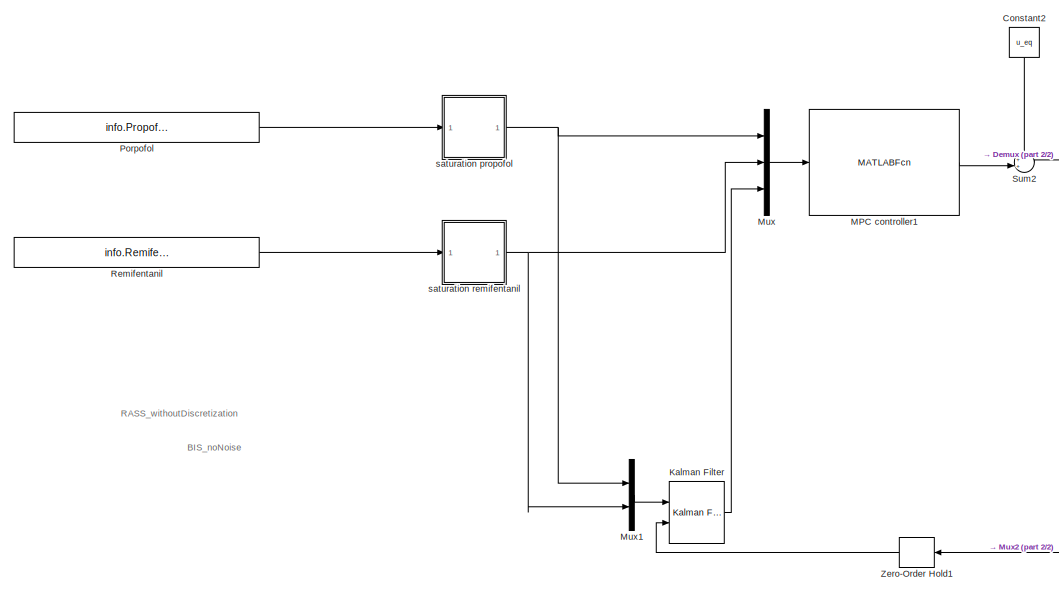
[diagram: root canvas - part 1/2, left side, full height]
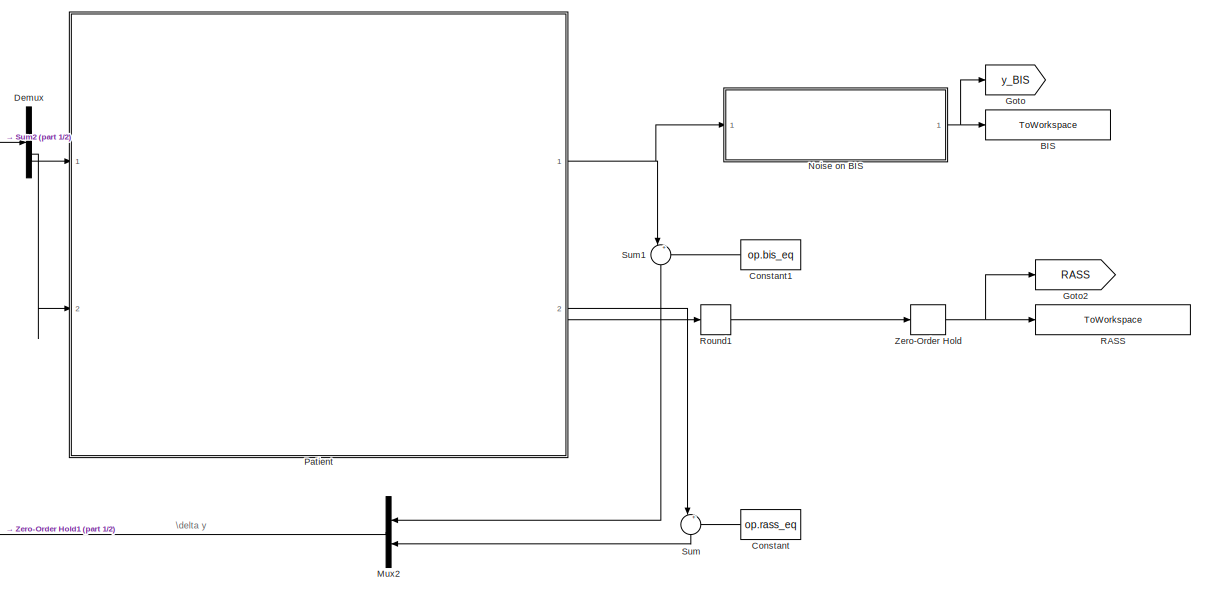
[diagram: root canvas - part 2/2, right side, full height]
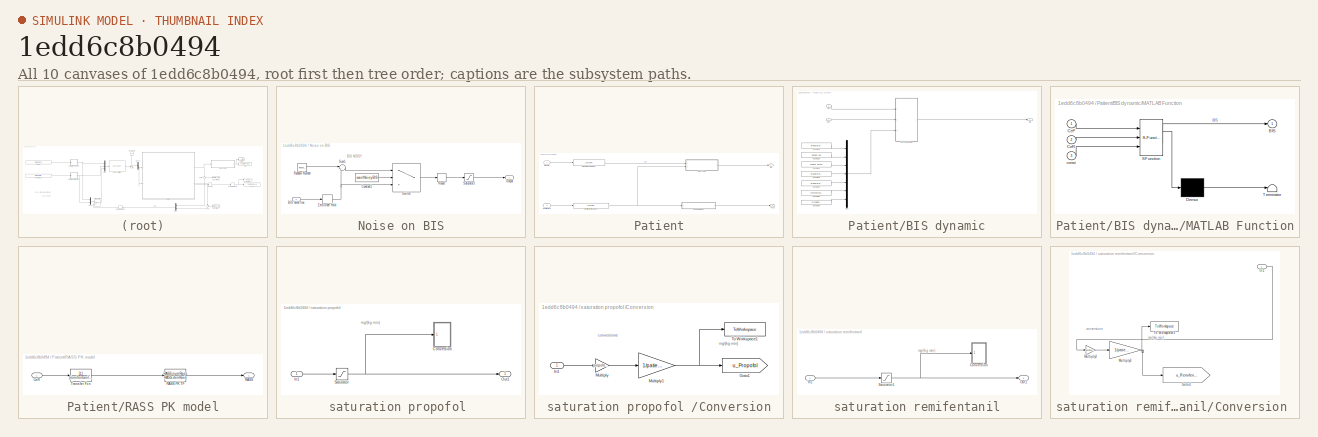
[diagram: thumbnail index - all 10 canvases of the model, root first then tree order]
MODEL slx_1edd6c8b0494
KIND model
CONFIG AbsTol = auto
CONFIG EnableMultiTasking = off
CONFIG FixedStep = auto
CONFIG MaxStep = auto
CONFIG MinStep = auto
CONFIG RelTol = 1e-3
CONFIG SampleTimeConstraint = Unconstrained
CONFIG SolverName = VariableStepAuto
CONFIG StartTime = 0.0
CONFIG StopTime = 10.0
BLOCK [ToWorkspace] BIS
  FixptAsFi = on
  MaxDataPoints = inf
  Ports = [1]
  SampleTime = info.Ts
  Save2DSignal = 2-D array (concatenate along first dimension)
  SaveFormat = Structure With Time
  VariableName = BIS_output
BLOCK [Constant] Constant
  Value = op.rass_eq
BLOCK [Constant] Constant1
  Value = op.bis_eq
BLOCK [Constant] Constant2
  NameLocation = left
  Value = u_eq
BLOCK [Demux] Demux
  Outputs = 2
  Ports = [1, 2]
BLOCK [Goto] Goto
  GotoTag = y_BIS
  TagVisibility = global
BLOCK [Goto] Goto2
  GotoTag = RASS
  TagVisibility = global
BLOCK [Reference] Kalman Filter  REF=ctrlSharedLib/Kalman Filter
  Ports = [2, 1]
  SourceBlock = ctrlSharedLib/Kalman Filter
  SourceProductBaseCode = CT,ID
  SourceType = ctrlKalmanFilter
BLOCK [MATLABFcn] MPC controller1
  MATLABFcn = myMPC_dist(u,contDiscMat,PH)
  OutputDimensions = 2
  Ports = [1, 1]
BLOCK [Mux] Mux
  DisplayOption = bar
  Inputs = 3
  Ports = [3, 1]
BLOCK [Mux] Mux1
  DisplayOption = bar
  Inputs = 2
  Ports = [2, 1]
BLOCK [Mux] Mux2
  DisplayOption = bar
  Inputs = 2
  Ports = [2, 1]
BLOCK [SubSystem] Noise on BIS
  Ports = [1, 1]
  RequestExecContextInheritance = off
BLOCK [Inport] Noise on BIS/BIS noise free
BLOCK [Constant] Noise on BIS/Constant1
  Value = wantNoisyBIS
BLOCK [Outport] Noise on BIS/Output
BLOCK [RandomNumber] Noise on BIS/Random Number
  SampleTime = info.Ts
  Variance = 6.27
BLOCK [Rounding] Noise on BIS/Round
  Operator = round
BLOCK [Saturate] Noise on BIS/Saturator3
  LowerLimit = 0
  UpperLimit = 100
BLOCK [Sum] Noise on BIS/Sum1
  Inputs = |++
  Ports = [2, 1]
BLOCK [Switch] Noise on BIS/Switch
  Criteria = u2 > Threshold
  InputSameDT = off
  SaturateOnIntegerOverflow = off
  Threshold = 0.5
BLOCK [ZeroOrderHold] Noise on BIS/Zero-Order Hold
  SampleTime = info.Ts
BLOCK [SubSystem] Patient
  Ports = [2, 2]
  RequestExecContextInheritance = off
BLOCK [Outport] Patient/BIS
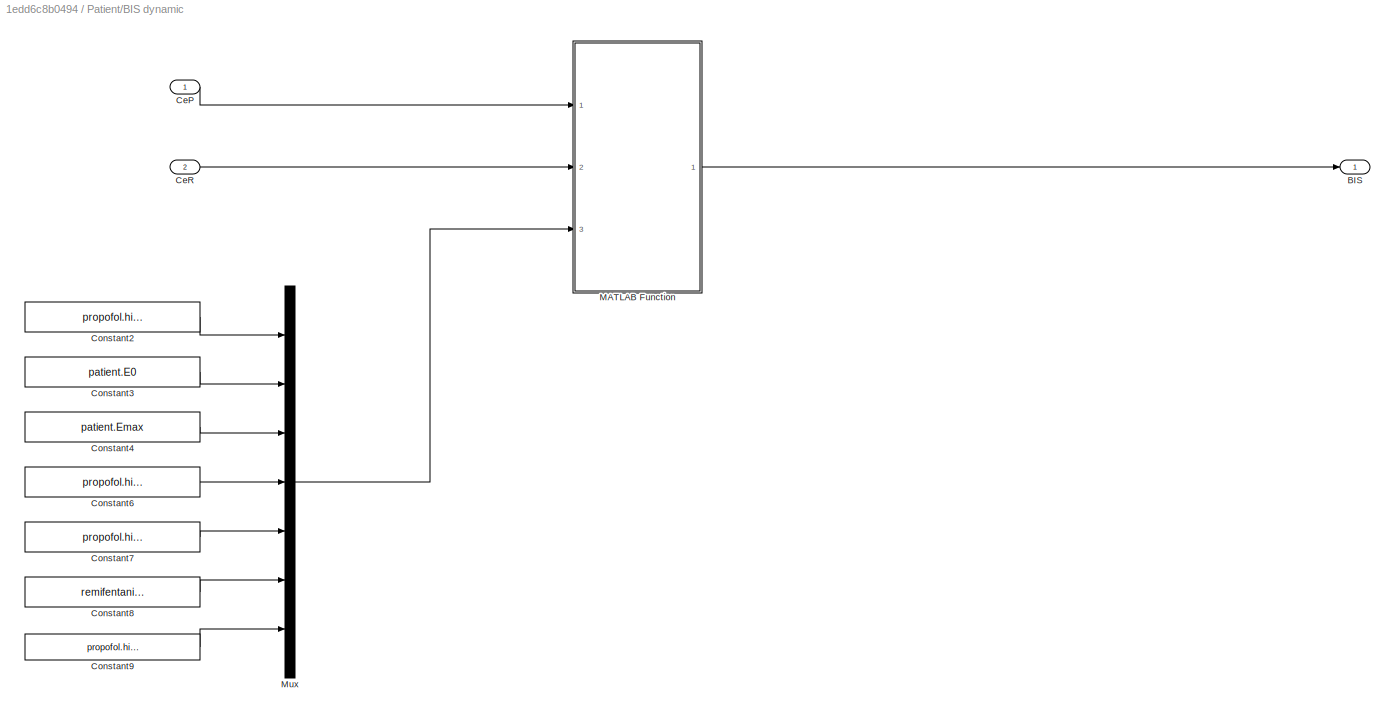
BLOCK [SubSystem] Patient/BIS dynamic
  Ports = [2, 1]
  RequestExecContextInheritance = off
BLOCK [Outport] Patient/BIS dynamic/BIS
BLOCK [Inport] Patient/BIS dynamic/CeP
BLOCK [Inport] Patient/BIS dynamic/CeR
  Port = 2
BLOCK [Constant] Patient/BIS dynamic/Constant2
  Value = propofol.hill_Propofol.beta
BLOCK [Constant] Patient/BIS dynamic/Constant3
  Value = patient.E0
BLOCK [Constant] Patient/BIS dynamic/Constant4
  Value = patient.Emax
BLOCK [Constant] Patient/BIS dynamic/Constant6
  Value = propofol.hill_Propofol.gamma
BLOCK [Constant] Patient/BIS dynamic/Constant7
  Value = propofol.hill_Propofol.C50P
BLOCK [Constant] Patient/BIS dynamic/Constant8
  Value = remifentanil.hill_Remifentanil.C50R
BLOCK [Constant] Patient/BIS dynamic/Constant9
  Value = propofol.hill_Propofol.sigma
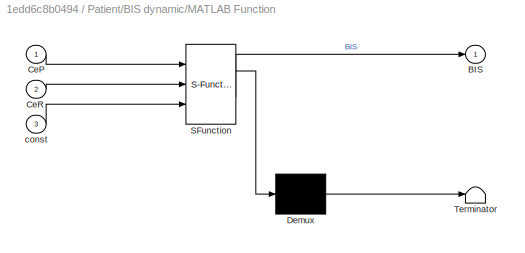
BLOCK [SubSystem] Patient/BIS dynamic/MATLAB Function
  ErrorFcn = Stateflow.Translate.translate
  PermitHierarchicalResolution = ExplicitOnly
  Ports = [3, 1]
  RequestExecContextInheritance = off
  SFBlockType = MATLAB Function
  TreatAsAtomicUnit = on
BLOCK [Demux] Patient/BIS dynamic/MATLAB Function/ Demux 
  Outputs = 1
  Ports = [1, 1]
BLOCK [S-Function] Patient/BIS dynamic/MATLAB Function/ SFunction 
  EnableBusSupport = on
  FunctionName = sf_sfun
  PortCounts = [3 2]
  Ports = [3, 2]
  SFcnIsStateOwnerBlock = off
  SFunctionDeploymentMode = off
  Tag = Stateflow S-Function 2
BLOCK [Terminator] Patient/BIS dynamic/MATLAB Function/ Terminator 
BLOCK [Outport] Patient/BIS dynamic/MATLAB Function/BIS
BLOCK [Inport] Patient/BIS dynamic/MATLAB Function/CeP
BLOCK [Inport] Patient/BIS dynamic/MATLAB Function/CeR
  Port = 2
BLOCK [Inport] Patient/BIS dynamic/MATLAB Function/const
  Port = 3
BLOCK [Mux] Patient/BIS dynamic/Mux
  DisplayOption = bar
  Inputs = 7
  Ports = [7, 1]
BLOCK [Inport] Patient/Propofol
BLOCK [Reference] Patient/Propofol SS PK model  REF=cstblocks/LTI System
  Ports = [1, 1]
  SourceBlock = cstblocks/LTI System
  SourceProductBaseCode = CT
  SourceType = LTI Block
BLOCK [Outport] Patient/RASS
  Port = 2
BLOCK [SubSystem] Patient/RASS PK model
  Ports = [1, 1]
  RequestExecContextInheritance = off
BLOCK [Inport] Patient/RASS PK model/CeR
BLOCK [Outport] Patient/RASS PK model/RASS
BLOCK [TransferFcn] Patient/RASS PK model/RASS PK TF
  Denominator = RASS.denRass
  Numerator = RASS.numRass
BLOCK [TransferFcn] Patient/RASS PK model/Transfer Fcn
  Denominator = [remifentanil.k1r*15 remifentanil.k0r]
BLOCK [Inport] Patient/Remifentanil
  Port = 2
BLOCK [Reference] Patient/Remifentanil PK model  REF=cstblocks/LTI System
  Ports = [1, 1]
  SourceBlock = cstblocks/LTI System
  SourceProductBaseCode = CT
  SourceType = LTI Block
BLOCK [Constant] Porpofol
  SampleTime = info.Ts
  Value = info.PropofolDose
BLOCK [ToWorkspace] RASS
  FixptAsFi = on
  MaxDataPoints = inf
  Ports = [1]
  SampleTime = info.Ts
  Save2DSignal = 2-D array (concatenate along first dimension)
  SaveFormat = Structure With Time
  VariableName = RASS_output
BLOCK [Constant] Remifentanil
  SampleTime = info.Ts
  Value = info.RemifentanilDose
BLOCK [Rounding] Round1
  Operator = round
BLOCK [Sum] Sum
  Inputs = |+-
  NameLocation = right
  Ports = [2, 1]
BLOCK [Sum] Sum1
  Inputs = |+-
  NameLocation = right
  Ports = [2, 1]
BLOCK [Sum] Sum2
  Inputs = ++|
  Ports = [2, 1]
BLOCK [ZeroOrderHold] Zero-Order Hold
  SampleTime = info.Ts
BLOCK [ZeroOrderHold] Zero-Order Hold1
  SampleTime = info.Ts
BLOCK [SubSystem] saturation propofol 
  Ports = [1, 1]
  RequestExecContextInheritance = off
BLOCK [SubSystem] saturation propofol /Conversion
  Ports = [1]
  RequestExecContextInheritance = off
BLOCK [Goto] saturation propofol /Conversion/Goto1
  GotoTag = u_Propofol
  TagVisibility = global
BLOCK [Inport] saturation propofol /Conversion/In1
BLOCK [Gain] saturation propofol /Conversion/Multiply
  Gain = propofol.hill_Propofol .V1p
BLOCK [Gain] saturation propofol /Conversion/Multiply1
  Gain = 1/patient.weight
BLOCK [ToWorkspace] saturation propofol /Conversion/To Workspace1
  FixptAsFi = on
  MaxDataPoints = inf
  Ports = [1]
  SampleTime = -1
  Save2DSignal = 2-D array (concatenate along first dimension)
  SaveFormat = Structure With Time
  VariableName = u_Propofol
BLOCK [Inport] saturation propofol /In1
BLOCK [Outport] saturation propofol /Out1
BLOCK [Saturate] saturation propofol /Saturator
  LowerLimit = 0
  UpperLimit = 5
BLOCK [SubSystem] saturation remifentanil
  Ports = [1, 1]
  RequestExecContextInheritance = off
BLOCK [SubSystem] saturation remifentanil/Conversion 
  Ports = [1]
  RequestExecContextInheritance = off
BLOCK [Goto] saturation remifentanil/Conversion /Goto4
  GotoTag = u_Remifentanil
  TagVisibility = global
BLOCK [Inport] saturation remifentanil/Conversion /In1
BLOCK [Gain] saturation remifentanil/Conversion /Multiply2
  Gain = remifentanil.hill_Remifentanil.V1r
BLOCK [Gain] saturation remifentanil/Conversion /Multiply3
  Gain = 1/patient.weight
BLOCK [ToWorkspace] saturation remifentanil/Conversion /To Workspace2
  FixptAsFi = on
  MaxDataPoints = inf
  Ports = [1]
  SampleTime = -1
  Save2DSignal = 2-D array (concatenate along first dimension)
  SaveFormat = Structure With Time
  VariableName = u_Remifentanil
BLOCK [Inport] saturation remifentanil/In1
BLOCK [Outport] saturation remifentanil/Out1
BLOCK [Saturate] saturation remifentanil/Saturator1
  LowerLimit = 0
  UpperLimit = 2.5
ANNOTATION (root): BIS_noNoise
ANNOTATION (root): RASS_withoutDiscretization
ANNOTATION (root): \delta y
ANNOTATION Noise on BIS: BIS NOISY
ANNOTATION saturation propofol : mg/(kg min)
ANNOTATION saturation propofol /Conversion: conversione
ANNOTATION saturation propofol /Conversion: mg/(kg min)
ANNOTATION saturation remifentanil: mg/(kg min)
ANNOTATION saturation remifentanil/Conversion : conversione
ANNOTATION saturation remifentanil/Conversion : mg/(kg min)
LINE Constant1:1 -> Sum1:2
LINE Constant2:1 -> Sum2:1
LINE Constant:1 -> Sum:2
LINE Demux:1 -> Patient:1
LINE Demux:2 -> Patient:2
LINE Kalman Filter:1 -> Mux:3
LINE MPC controller1:1 -> Sum2:2
LINE Mux1:1 -> Kalman Filter:1
LINE Mux2:1 -> Zero-Order Hold1:1
LINE Mux:1 -> MPC controller1:1
LINE Noise on BIS/BIS noise free:1 -> Noise on BIS/Zero-Order Hold:1
LINE Noise on BIS/Constant1:1 -> Noise on BIS/Switch:2
LINE Noise on BIS/Random Number:1 -> Noise on BIS/Sum1:1
LINE Noise on BIS/Round:1 -> Noise on BIS/Saturator3:1
LINE Noise on BIS/Saturator3:1 -> Noise on BIS/Output:1
LINE Noise on BIS/Sum1:1 -> Noise on BIS/Switch:1
LINE Noise on BIS/Switch:1 -> Noise on BIS/Round:1
NET Noise on BIS/Zero-Order Hold:1 -> Noise on BIS/Sum1:2, Noise on BIS/Switch:3
NET Noise on BIS:1 -> BIS:1, Goto:1
LINE Patient/BIS dynamic/CeP:1 -> Patient/BIS dynamic/MATLAB Function:1
LINE Patient/BIS dynamic/CeR:1 -> Patient/BIS dynamic/MATLAB Function:2
LINE Patient/BIS dynamic/Constant2:1 -> Patient/BIS dynamic/Mux:1
LINE Patient/BIS dynamic/Constant3:1 -> Patient/BIS dynamic/Mux:2
LINE Patient/BIS dynamic/Constant4:1 -> Patient/BIS dynamic/Mux:3
LINE Patient/BIS dynamic/Constant6:1 -> Patient/BIS dynamic/Mux:4
LINE Patient/BIS dynamic/Constant7:1 -> Patient/BIS dynamic/Mux:5
LINE Patient/BIS dynamic/Constant8:1 -> Patient/BIS dynamic/Mux:6
LINE Patient/BIS dynamic/Constant9:1 -> Patient/BIS dynamic/Mux:7
LINE Patient/BIS dynamic/MATLAB Function:1 -> Patient/BIS dynamic/BIS:1
LINE Patient/BIS dynamic/Mux:1 -> Patient/BIS dynamic/MATLAB Function:3
LINE Patient/BIS dynamic:1 -> Patient/BIS:1
LINE Patient/Propofol SS PK model:1 -> Patient/BIS dynamic:1
LINE Patient/Propofol:1 -> Patient/Propofol SS PK model:1
LINE Patient/RASS PK model/CeR:1 -> Patient/RASS PK model/Transfer Fcn:1
LINE Patient/RASS PK model/RASS PK TF:1 -> Patient/RASS PK model/RASS:1
LINE Patient/RASS PK model/Transfer Fcn:1 -> Patient/RASS PK model/RASS PK TF:1
LINE Patient/RASS PK model:1 -> Patient/RASS:1
NET Patient/Remifentanil PK model:1 -> Patient/BIS dynamic:2, Patient/RASS PK model:1
LINE Patient/Remifentanil:1 -> Patient/Remifentanil PK model:1
NET Patient:1 -> Noise on BIS:1, Sum1:1
NET Patient:2 -> Round1:1, Sum:1
LINE Porpofol:1 -> saturation propofol :1
LINE Remifentanil:1 -> saturation remifentanil:1
LINE Round1:1 -> Zero-Order Hold:1
LINE Sum1:1 -> Mux2:1
LINE Sum2:1 -> Demux:1
LINE Sum:1 -> Mux2:2
LINE Zero-Order Hold1:1 -> Kalman Filter:2
NET Zero-Order Hold:1 -> Goto2:1, RASS:1
LINE saturation propofol /Conversion/In1:1 -> saturation propofol /Conversion/Multiply:1
NET saturation propofol /Conversion/Multiply1:1 -> saturation propofol /Conversion/Goto1:1, saturation propofol /Conversion/To Workspace1:1
LINE saturation propofol /Conversion/Multiply:1 -> saturation propofol /Conversion/Multiply1:1
LINE saturation propofol /In1:1 -> saturation propofol /Saturator:1
NET saturation propofol /Saturator:1 -> saturation propofol /Conversion:1, saturation propofol /Out1:1
NET saturation propofol :1 -> Mux1:1, Mux:1
LINE saturation remifentanil/Conversion /In1:1 -> saturation remifentanil/Conversion /Multiply2:1
LINE saturation remifentanil/Conversion /Multiply2:1 -> saturation remifentanil/Conversion /Multiply3:1
NET saturation remifentanil/Conversion /Multiply3:1 -> saturation remifentanil/Conversion /Goto4:1, saturation remifentanil/Conversion /To Workspace2:1
LINE saturation remifentanil/In1:1 -> saturation remifentanil/Saturator1:1
NET saturation remifentanil/Saturator1:1 -> saturation remifentanil/Conversion :1, saturation remifentanil/Out1:1
NET saturation remifentanil:1 -> Mux1:2, Mux:2
note: NET lines group one-source signal fan-out (src -> all destinations, sorted); 1:1 wires keep LINE
CHART Patient/BIS dynamic/MATLAB Function states=1 transitions=1
  STATE_LABEL 'eML_blk_kernel()'
  STATE_LABEL 'SCRIPT:\nfunction BIS = fcn(CeP,CeR, const)\n\nif CeP >=0 && CeR >=0\n    %% Constant declaration\n    beta = const(1);\n    E0 = const(2); %starting effect\n%     E0 = const(2)-100; %starting effect\n    Emax = const(3); %maximum effect achievable\n    gamma = const(4); %sigmoidicity\n    C50P = const(5); % half effect concentration\n    C50R = const(6); % half effect concentration\n    sigma = const(7);% si...<+245ch>'
CHART  states=0 transitions=0
